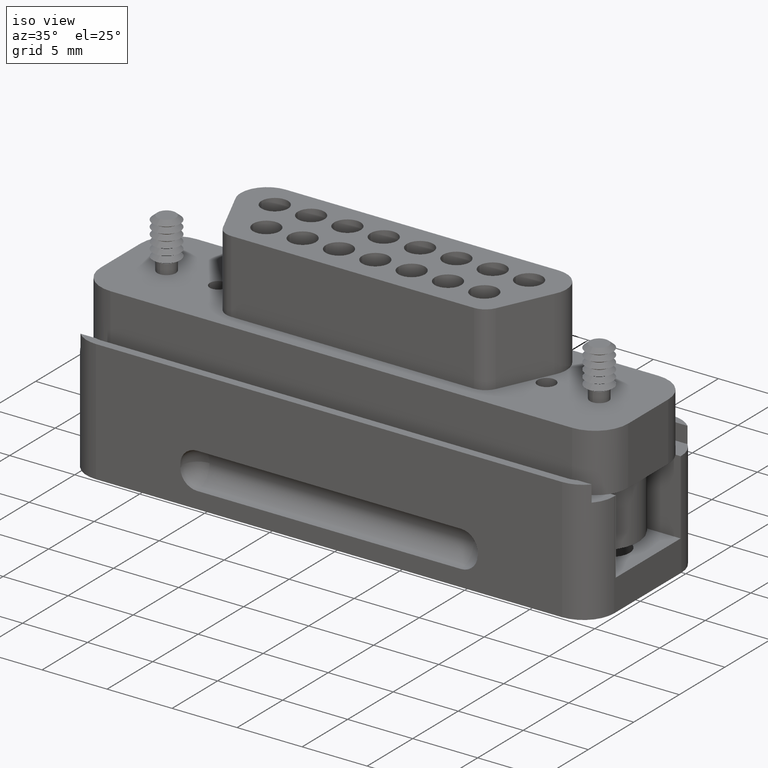
[diagram: clean part render]
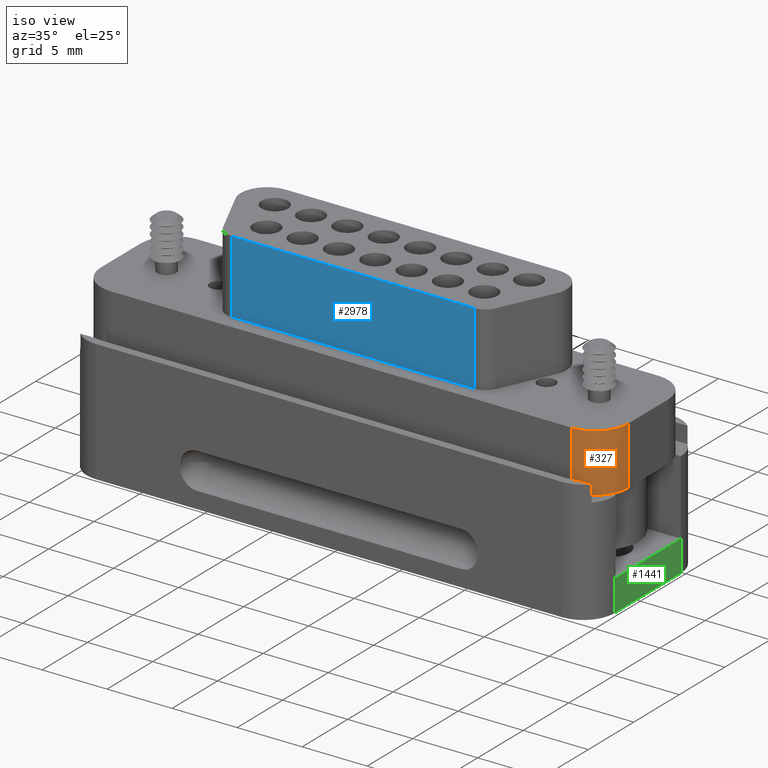
[diagram: same view with three faces highlighted in distinct colors, each labeled with its STEP entity id]
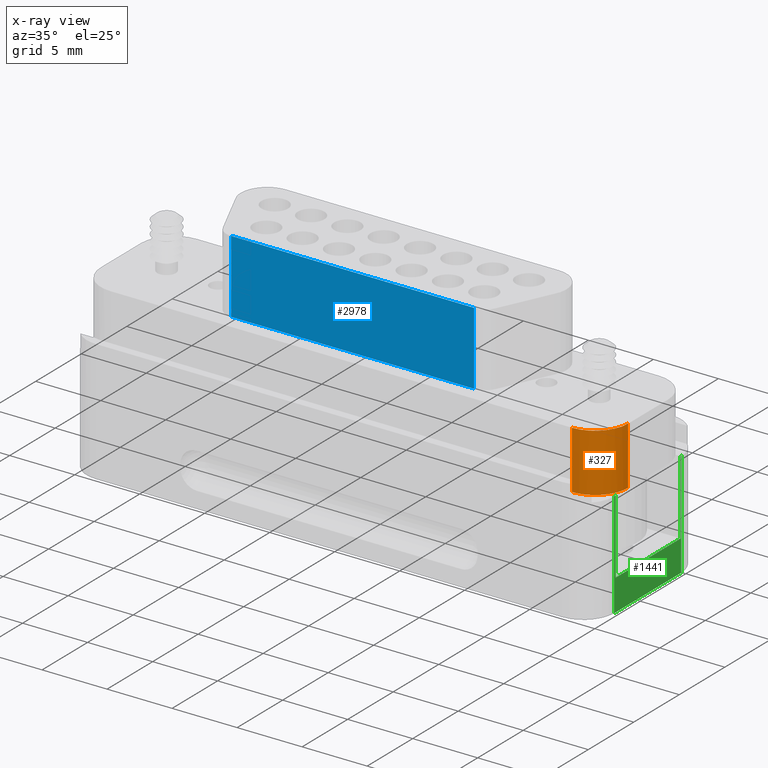
[diagram: x-ray of the same camera — body ghosted, the three highlighted faces saturated]
A machine part, iso view with three faces highlighted in distinct colors.
The next image is the same camera in x-ray (body ghosted, the three faces saturated) — at least one of them is partly hidden behind the body in this view.
Their STEP definitions:

[orange] entity #327 — the highlighted cylindrical surface (partial cylindrical patch) has radius 2.54 mm, axis along (-0, -0, -1).
#327 = ADVANCED_FACE ( 'NONE', ( #4303 ), #4290, .T. ) ;
#822 = EDGE_CURVE ( 'NONE', #2506, #2386, #4247, .T. ) ;
#827 = EDGE_CURVE ( 'NONE', #2386, #2445, #4237, .T. ) ;
#828 = EDGE_CURVE ( 'NONE', #2445, #2500, #4235, .T. ) ;
#829 = EDGE_CURVE ( 'NONE', #2431, #2500, #4234, .T. ) ;
#830 = EDGE_CURVE ( 'NONE', #2506, #2431, #4241, .T. ) ;
#2386 = VERTEX_POINT ( 'NONE', #4506 ) ;
#2431 = VERTEX_POINT ( 'NONE', #5291 ) ;
#2445 = VERTEX_POINT ( 'NONE', #5267 ) ;
#2500 = VERTEX_POINT ( 'NONE', #5205 ) ;
#2506 = VERTEX_POINT ( 'NONE', #5200 ) ;
#2625 = AXIS2_PLACEMENT_3D ( 'NONE', #3996, #3998, #4000 ) ;
#2645 = AXIS2_PLACEMENT_3D ( 'NONE', #3897, #3896, #3895 ) ;
#2646 = AXIS2_PLACEMENT_3D ( 'NONE', #3893, #3892, #3891 ) ;
#2647 = AXIS2_PLACEMENT_3D ( 'NONE', #3887, #3886, #3885 ) ;
#2755 = EDGE_LOOP ( 'NONE', ( #4353, #4352, #4349, #4350, #4346 ) ) ;
#3885 = DIRECTION ( 'NONE',  ( 1.000000000000000000, 0.0000000000000000000, 0.0000000000000000000 ) ) ;
#3886 = DIRECTION ( 'NONE',  ( 0.0000000000000000000, 0.0000000000000000000, 1.000000000000000000 ) ) ;
#3887 = CARTESIAN_POINT ( 'NONE',  ( 0.9054380629736733500, 0.1143157057703706700, 0.3282459008453934600 ) ) ;
#3891 = DIRECTION ( 'NONE',  ( 1.000000000000000000, 0.0000000000000000000, 0.0000000000000000000 ) ) ;
#3892 = DIRECTION ( 'NONE',  ( 0.0000000000000000000, 0.0000000000000000000, 1.000000000000000000 ) ) ;
#3893 = CARTESIAN_POINT ( 'NONE',  ( 0.9054380629736733500, 0.1143157057703706700, 0.1522459008453934900 ) ) ;
#3895 = DIRECTION ( 'NONE',  ( 1.000000000000000000, 0.0000000000000000000, 0.0000000000000000000 ) ) ;
#3896 = DIRECTION ( 'NONE',  ( 0.0000000000000000000, 0.0000000000000000000, 1.000000000000000000 ) ) ;
#3897 = CARTESIAN_POINT ( 'NONE',  ( 0.9054380629736733500, 0.1143157057703706700, 0.1522459008453934900 ) ) ;
#3898 = DIRECTION ( 'NONE',  ( -0.0000000000000000000, -0.0000000000000000000, -1.000000000000000000 ) ) ;
#3899 = CARTESIAN_POINT ( 'NONE',  ( 1.005438062973673400, 0.1143157057703706900, 0.3282459008453934600 ) ) ;
#3906 = DIRECTION ( 'NONE',  ( -0.0000000000000000000, -0.0000000000000000000, -1.000000000000000000 ) ) ;
#3907 = CARTESIAN_POINT ( 'NONE',  ( 0.9054380629736733500, 0.01431570577037068000, 0.3282459008453934600 ) ) ;
#3996 = CARTESIAN_POINT ( 'NONE',  ( 0.9054380629736733500, 0.1143157057703706700, 0.3282459008453934600 ) ) ;
#3998 = DIRECTION ( 'NONE',  ( -0.0000000000000000000, -0.0000000000000000000, -1.000000000000000000 ) ) ;
#4000 = DIRECTION ( 'NONE',  ( -1.000000000000000000, 0.0000000000000000000, 0.0000000000000000000 ) ) ;
#4232 = VECTOR ( 'NONE', #3898, 39.37007874015748100 ) ;
#4234 = LINE ( 'NONE', #3899, #4232 ) ;
#4235 = CIRCLE ( 'NONE', #2646, 0.1000000000000000200 ) ;
#4237 = CIRCLE ( 'NONE', #2645, 0.1000000000000000200 ) ;
#4241 = CIRCLE ( 'NONE', #2647, 0.1000000000000000200 ) ;
#4244 = VECTOR ( 'NONE', #3906, 39.37007874015748100 ) ;
#4247 = LINE ( 'NONE', #3907, #4244 ) ;
#4290 = CYLINDRICAL_SURFACE ( 'NONE', #2625, 0.1000000000000000200 ) ;
#4303 = FACE_OUTER_BOUND ( 'NONE', #2755, .T. ) ;
#4346 = ORIENTED_EDGE ( 'NONE', *, *, #822, .T. ) ;
#4349 = ORIENTED_EDGE ( 'NONE', *, *, #829, .F. ) ;
#4350 = ORIENTED_EDGE ( 'NONE', *, *, #830, .F. ) ;
#4352 = ORIENTED_EDGE ( 'NONE', *, *, #828, .T. ) ;
#4353 = ORIENTED_EDGE ( 'NONE', *, *, #827, .T. ) ;
#4506 = CARTESIAN_POINT ( 'NONE',  ( 0.9054380629736733500, 0.01431570577037068000, 0.1522459008453934900 ) ) ;
#5200 = CARTESIAN_POINT ( 'NONE',  ( 0.9054380629736733500, 0.01431570577037068000, 0.3282459008453934600 ) ) ;
#5205 = CARTESIAN_POINT ( 'NONE',  ( 1.005438062973673400, 0.1143157057703706900, 0.1522459008453934900 ) ) ;
#5267 = CARTESIAN_POINT ( 'NONE',  ( 0.9897081767154973800, 0.06047754151916261800, 0.1522459008453934900 ) ) ;
#5291 = CARTESIAN_POINT ( 'NONE',  ( 1.005438062973673400, 0.1143157057703706900, 0.3282459008453934600 ) ) ;

[blue] entity #2978 — the highlighted planar face has unit normal (0, 1, 0).
#129 = ORIENTED_EDGE ( 'NONE', *, *, #2982, .T. ) ;
#130 = ORIENTED_EDGE ( 'NONE', *, *, #2981, .F. ) ;
#131 = ORIENTED_EDGE ( 'NONE', *, *, #2983, .F. ) ;
#132 = ORIENTED_EDGE ( 'NONE', *, *, #2984, .T. ) ;
#1413 = VECTOR ( 'NONE', #4828, 39.37007874015748100 ) ;
#1415 = VECTOR ( 'NONE', #4832, 39.37007874015748100 ) ;
#1416 = LINE ( 'NONE', #4839, #1415 ) ;
#1417 = LINE ( 'NONE', #4830, #1413 ) ;
#1418 = VECTOR ( 'NONE', #4833, 39.37007874015748100 ) ;
#1419 = LINE ( 'NONE', #4835, #1418 ) ;
#1421 = VECTOR ( 'NONE', #4844, 39.37007874015748100 ) ;
#1456 = LINE ( 'NONE', #4842, #1421 ) ;
#1458 = FACE_OUTER_BOUND ( 'NONE', #2883, .T. ) ;
#1778 = AXIS2_PLACEMENT_3D ( 'NONE', #4855, #4849, #4847 ) ;
#2239 = VERTEX_POINT ( 'NONE', #4991 ) ;
#2308 = VERTEX_POINT ( 'NONE', #4776 ) ;
#2325 = VERTEX_POINT ( 'NONE', #4720 ) ;
#2526 = VERTEX_POINT ( 'NONE', #5188 ) ;
#2883 = EDGE_LOOP ( 'NONE', ( #129, #130, #131, #132 ) ) ;
#2978 = ADVANCED_FACE ( 'NONE', ( #1458 ), #4852, .F. ) ;
#2981 = EDGE_CURVE ( 'NONE', #2325, #2308, #1456, .T. ) ;
#2982 = EDGE_CURVE ( 'NONE', #2239, #2308, #1419, .T. ) ;
#2983 = EDGE_CURVE ( 'NONE', #2526, #2325, #1416, .T. ) ;
#2984 = EDGE_CURVE ( 'NONE', #2526, #2239, #1417, .T. ) ;
#4720 = CARTESIAN_POINT ( 'NONE',  ( 0.5746702731031577700, 0.06302665155504874600, 0.5492459008453934900 ) ) ;
#4776 = CARTESIAN_POINT ( 'NONE',  ( 0.5746702731031577700, 0.06302665155504874600, 0.3282459008453934600 ) ) ;
#4828 = DIRECTION ( 'NONE',  ( -0.0000000000000000000, -0.0000000000000000000, -1.000000000000000000 ) ) ;
#4830 = CARTESIAN_POINT ( 'NONE',  ( -0.1608247446730734200, 0.06302665155504870400, 0.5492459008453934900 ) ) ;
#4832 = DIRECTION ( 'NONE',  ( 1.000000000000000000, 0.0000000000000000000, 0.0000000000000000000 ) ) ;
#4833 = DIRECTION ( 'NONE',  ( 1.000000000000000000, 0.0000000000000000000, 0.0000000000000000000 ) ) ;
#4835 = CARTESIAN_POINT ( 'NONE',  ( -0.1608247446730734200, 0.06302665155504870400, 0.3282459008453934600 ) ) ;
#4839 = CARTESIAN_POINT ( 'NONE',  ( -0.1608247446730734200, 0.06302665155504870400, 0.5492459008453934900 ) ) ;
#4842 = CARTESIAN_POINT ( 'NONE',  ( 0.5746702731031577700, 0.06302665155504874600, 0.5492459008453934900 ) ) ;
#4844 = DIRECTION ( 'NONE',  ( -0.0000000000000000000, -0.0000000000000000000, -1.000000000000000000 ) ) ;
#4847 = DIRECTION ( 'NONE',  ( 0.0000000000000000000, -0.0000000000000000000, 1.000000000000000000 ) ) ;
#4849 = DIRECTION ( 'NONE',  ( 0.0000000000000000000, 1.000000000000000000, 0.0000000000000000000 ) ) ;
#4852 = PLANE ( 'NONE',  #1778 ) ;
#4855 = CARTESIAN_POINT ( 'NONE',  ( -0.1608247446730734200, 0.06302665155504870400, 0.5492459008453934900 ) ) ;
#4991 = CARTESIAN_POINT ( 'NONE',  ( -0.1608247446730734200, 0.06302665155504870400, 0.3282459008453934600 ) ) ;
#5188 = CARTESIAN_POINT ( 'NONE',  ( -0.1608247446730734200, 0.06302665155504870400, 0.5492459008453934900 ) ) ;

[green] entity #1441 — the highlighted planar face has unit normal (-1, 0, 0).
#240 = ORIENTED_EDGE ( 'NONE', *, *, #2543, .F. ) ;
#241 = ORIENTED_EDGE ( 'NONE', *, *, #2542, .T. ) ;
#424 = DIRECTION ( 'NONE',  ( -0.0000000000000000000, -0.0000000000000000000, -1.000000000000000000 ) ) ;
#426 = CARTESIAN_POINT ( 'NONE',  ( 1.005438062973673400, 0.05380966712302667800, 0.2022459008453935100 ) ) ;
#740 = VECTOR ( 'NONE', #424, 39.37007874015748100 ) ;
#742 = LINE ( 'NONE', #426, #740 ) ;
#826 = EDGE_CURVE ( 'NONE', #2429, #2523, #4239, .T. ) ;
#1359 = VECTOR ( 'NONE', #4708, 39.37007874015748100 ) ;
#1362 = LINE ( 'NONE', #4709, #1359 ) ;
#1373 = VECTOR ( 'NONE', #4744, 39.37007874015748100 ) ;
#1376 = LINE ( 'NONE', #4728, #1373 ) ;
#1441 = ADVANCED_FACE ( 'NONE', ( #1614 ), #5143, .F. ) ;
#1579 = VECTOR ( 'NONE', #5148, 39.37007874015748100 ) ;
#1581 = VECTOR ( 'NONE', #5152, 39.37007874015748100 ) ;
#1582 = LINE ( 'NONE', #5150, #1579 ) ;
#1583 = VECTOR ( 'NONE', #5154, 39.37007874015748100 ) ;
#1585 = VECTOR ( 'NONE', #5155, 39.37007874015748100 ) ;
#1586 = LINE ( 'NONE', #5161, #1581 ) ;
#1588 = LINE ( 'NONE', #5169, #1583 ) ;
#1590 = LINE ( 'NONE', #5157, #1585 ) ;
#1614 = FACE_OUTER_BOUND ( 'NONE', #2742, .T. ) ;
#2374 = VERTEX_POINT ( 'NONE', #4547 ) ;
#2429 = VERTEX_POINT ( 'NONE', #5284 ) ;
#2449 = VERTEX_POINT ( 'NONE', #5262 ) ;
#2471 = VERTEX_POINT ( 'NONE', #5240 ) ;
#2485 = VERTEX_POINT ( 'NONE', #5222 ) ;
#2487 = VERTEX_POINT ( 'NONE', #5220 ) ;
#2490 = VERTEX_POINT ( 'NONE', #5215 ) ;
#2523 = VERTEX_POINT ( 'NONE', #5182 ) ;
#2540 = EDGE_CURVE ( 'NONE', #2471, #2374, #1590, .T. ) ;
#2541 = EDGE_CURVE ( 'NONE', #2471, #2487, #1588, .T. ) ;
#2542 = EDGE_CURVE ( 'NONE', #2485, #2449, #1586, .T. ) ;
#2543 = EDGE_CURVE ( 'NONE', #2487, #2449, #1582, .T. ) ;
#2742 = EDGE_LOOP ( 'NONE', ( #4376, #4379, #4382, #4385, #4402, #4410, #241, #240 ) ) ;
#3011 = EDGE_CURVE ( 'NONE', #2490, #2374, #1376, .T. ) ;
#3018 = EDGE_CURVE ( 'NONE', #2490, #2523, #1362, .T. ) ;
#3187 = AXIS2_PLACEMENT_3D ( 'NONE', #5156, #5137, #5135 ) ;
#3900 = DIRECTION ( 'NONE',  ( 0.0000000000000000000, 1.000000000000000000, 0.0000000000000000000 ) ) ;
#3901 = CARTESIAN_POINT ( 'NONE',  ( 1.005438062973673400, 0.05380966712302667800, 0.1522459008453934900 ) ) ;
#4123 = EDGE_CURVE ( 'NONE', #2429, #2485, #742, .T. ) ;
#4236 = VECTOR ( 'NONE', #3900, 39.37007874015748100 ) ;
#4239 = LINE ( 'NONE', #3901, #4236 ) ;
#4376 = ORIENTED_EDGE ( 'NONE', *, *, #2541, .F. ) ;
#4379 = ORIENTED_EDGE ( 'NONE', *, *, #2540, .T. ) ;
#4382 = ORIENTED_EDGE ( 'NONE', *, *, #3011, .F. ) ;
#4385 = ORIENTED_EDGE ( 'NONE', *, *, #3018, .T. ) ;
#4402 = ORIENTED_EDGE ( 'NONE', *, *, #826, .F. ) ;
#4410 = ORIENTED_EDGE ( 'NONE', *, *, #4123, .T. ) ;
#4547 = CARTESIAN_POINT ( 'NONE',  ( 1.005438062973673400, 0.3411538700215780400, -0.07275409915460649700 ) ) ;
#4708 = DIRECTION ( 'NONE',  ( 0.0000000000000000000, 0.0000000000000000000, 1.000000000000000000 ) ) ;
#4709 = CARTESIAN_POINT ( 'NONE',  ( 1.005438062973673400, 0.06047754151916261800, 0.2022459008453935100 ) ) ;
#4728 = CARTESIAN_POINT ( 'NONE',  ( 1.005438062973673400, 0.05380966712302667800, -0.07275409915460649700 ) ) ;
#4744 = DIRECTION ( 'NONE',  ( 0.0000000000000000000, 1.000000000000000000, 0.0000000000000000000 ) ) ;
#5135 = DIRECTION ( 'NONE',  ( 0.0000000000000000000, 0.0000000000000000000, 1.000000000000000000 ) ) ;
#5137 = DIRECTION ( 'NONE',  ( -1.000000000000000000, 0.0000000000000000000, 0.0000000000000000000 ) ) ;
#5143 = PLANE ( 'NONE',  #3187 ) ;
#5148 = DIRECTION ( 'NONE',  ( -0.0000000000000000000, -0.0000000000000000000, -1.000000000000000000 ) ) ;
#5150 = CARTESIAN_POINT ( 'NONE',  ( 1.005438062973673700, 0.3438096671230258000, 0.2022459008453935100 ) ) ;
#5152 = DIRECTION ( 'NONE',  ( 0.0000000000000000000, 1.000000000000000000, 0.0000000000000000000 ) ) ;
#5154 = DIRECTION ( 'NONE',  ( 0.0000000000000000000, 1.000000000000000000, 0.0000000000000000000 ) ) ;
#5155 = DIRECTION ( 'NONE',  ( 0.0000000000000000000, 0.0000000000000000000, -1.000000000000000000 ) ) ;
#5156 = CARTESIAN_POINT ( 'NONE',  ( 1.005438062973673400, 0.05380966712302667800, 0.2022459008453935100 ) ) ;
#5157 = CARTESIAN_POINT ( 'NONE',  ( 1.005438062973673400, 0.3411538700215780400, 0.2022459008453935100 ) ) ;
#5161 = CARTESIAN_POINT ( 'NONE',  ( 1.005438062973673400, 0.05380966712302667800, -0.1677540991546065100 ) ) ;
#5169 = CARTESIAN_POINT ( 'NONE',  ( 1.005438062973673400, 0.05380966712302667800, 0.1522459008453934900 ) ) ;
#5182 = CARTESIAN_POINT ( 'NONE',  ( 1.005438062973673700, 0.06047754151916261800, 0.1522459008453934900 ) ) ;
#5215 = CARTESIAN_POINT ( 'NONE',  ( 1.005438062973673400, 0.06047754151916261800, -0.07275409915460649700 ) ) ;
#5220 = CARTESIAN_POINT ( 'NONE',  ( 1.005438062973673700, 0.3438096671230258000, 0.1522459008453934900 ) ) ;
#5222 = CARTESIAN_POINT ( 'NONE',  ( 1.005438062973673400, 0.05380966712302667800, -0.1677540991546065100 ) ) ;
#5240 = CARTESIAN_POINT ( 'NONE',  ( 1.005438062973673700, 0.3411538700215780400, 0.1522459008453934900 ) ) ;
#5262 = CARTESIAN_POINT ( 'NONE',  ( 1.005438062973673700, 0.3438096671230258000, -0.1677540991546065100 ) ) ;
#5284 = CARTESIAN_POINT ( 'NONE',  ( 1.005438062973673400, 0.05380966712302667800, 0.1522459008453934900 ) ) ;